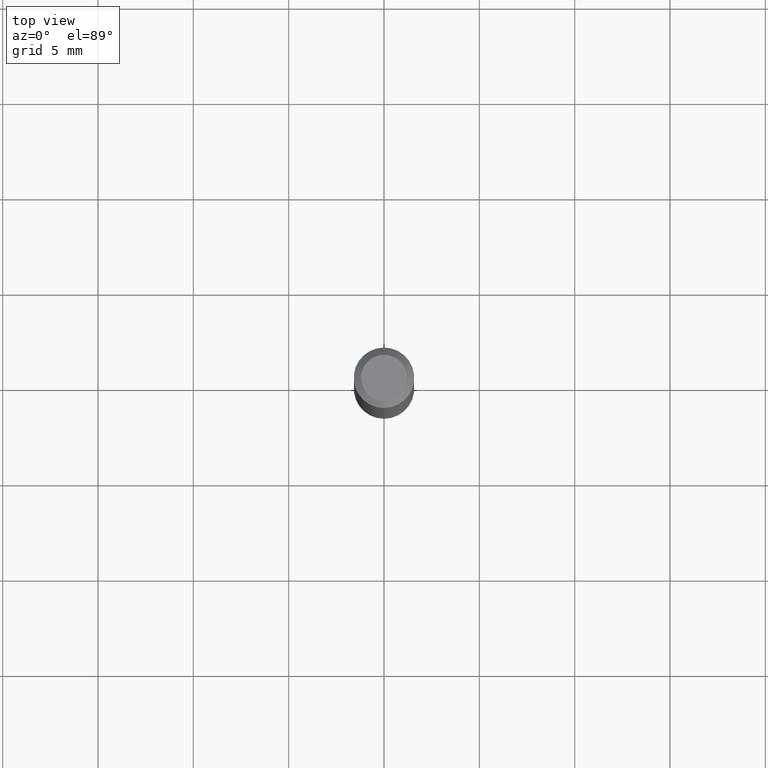
[diagram: clean part render]
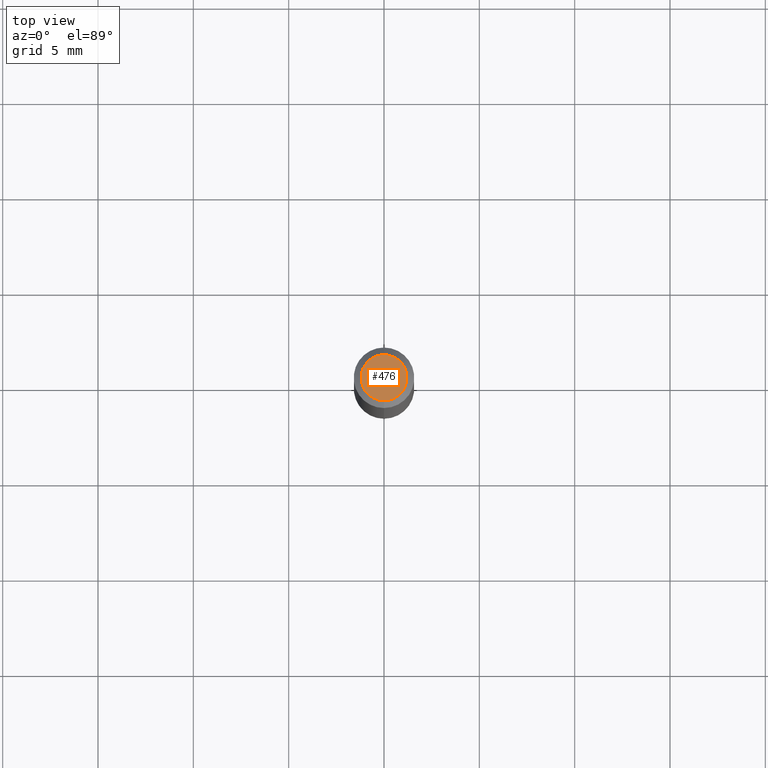
[diagram: same view with one face highlighted and labeled with its STEP entity id]
A machine part, top view. The second image highlights one B-rep face of the part: STEP entity #476.
In plain terms, the highlighted planar face has unit normal (0, -0, -1).
Its self-contained STEP definition (entity closure, byte-faithful):
#17 = CIRCLE ( 'NONE', #453, 0.04749999999999999362 ) ;
#18 = DIRECTION ( 'NONE',  ( -6.982962677686266711E-15, -1.000000000000000000, 3.491497084736407816E-15 ) ) ;
#20 = VERTEX_POINT ( 'NONE', #72 ) ;
#26 = DIRECTION ( 'NONE',  ( 6.982962677686265922E-15, 1.000000000000000000, -3.491497084736408211E-15 ) ) ;
#72 = CARTESIAN_POINT ( 'NONE',  ( 3.840629472727447874E-16, 0.04749999999999999362, -1.747056831868805136E-16 ) ) ;
#79 = AXIS2_PLACEMENT_3D ( 'NONE', #262, #301, #26 ) ;
#109 = VERTEX_POINT ( 'NONE', #195 ) ;
#112 = AXIS2_PLACEMENT_3D ( 'NONE', #207, #358, #323 ) ;
#195 = CARTESIAN_POINT ( 'NONE',  ( -3.773273898774340269E-16, -0.04749999999999999362, 1.569865398630781964E-16 ) ) ;
#199 = EDGE_CURVE ( 'NONE', #109, #20, #263, .T. ) ;
#207 = CARTESIAN_POINT ( 'NONE',  ( 2.166570872170608924E-46, -3.093316862954116023E-32, -8.859571661901150933E-18 ) ) ;
#215 = CARTESIAN_POINT ( 'NONE',  ( 2.166570872170608924E-46, -3.093316862954116023E-32, -8.859571661901150933E-18 ) ) ;
#220 = FACE_OUTER_BOUND ( 'NONE', #227, .T. ) ;
#227 = EDGE_LOOP ( 'NONE', ( #292, #302 ) ) ;
#262 = CARTESIAN_POINT ( 'NONE',  ( 3.316907271900976096E-16, 0.04749999999999999362, -1.702758973559299158E-16 ) ) ;
#263 = CIRCLE ( 'NONE', #112, 0.04749999999999999362 ) ;
#292 = ORIENTED_EDGE ( 'NONE', *, *, #444, .T. ) ;
#301 = DIRECTION ( 'NONE',  ( 2.445457810886638235E-29, -3.491497084736408211E-15, -1.000000000000000000 ) ) ;
#302 = ORIENTED_EDGE ( 'NONE', *, *, #199, .T. ) ;
#323 = DIRECTION ( 'NONE',  ( -6.982962677686266711E-15, -1.000000000000000000, 3.491497084736407816E-15 ) ) ;
#358 = DIRECTION ( 'NONE',  ( -2.445457810886639076E-29, 3.491497084736407816E-15, 1.000000000000000000 ) ) ;
#366 = DIRECTION ( 'NONE',  ( -2.445457810886639076E-29, 3.491497084736407816E-15, 1.000000000000000000 ) ) ;
#444 = EDGE_CURVE ( 'NONE', #20, #109, #17, .T. ) ;
#453 = AXIS2_PLACEMENT_3D ( 'NONE', #215, #366, #18 ) ;
#455 = PLANE ( 'NONE',  #79 ) ;
#476 = ADVANCED_FACE ( 'NONE', ( #220 ), #455, .F. ) ;